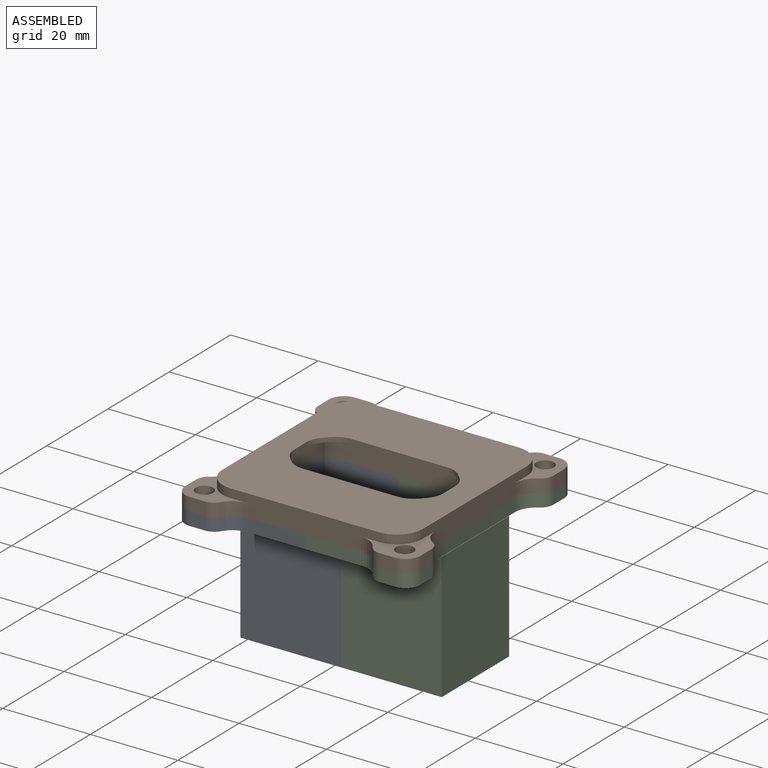
[diagram: assembled view]
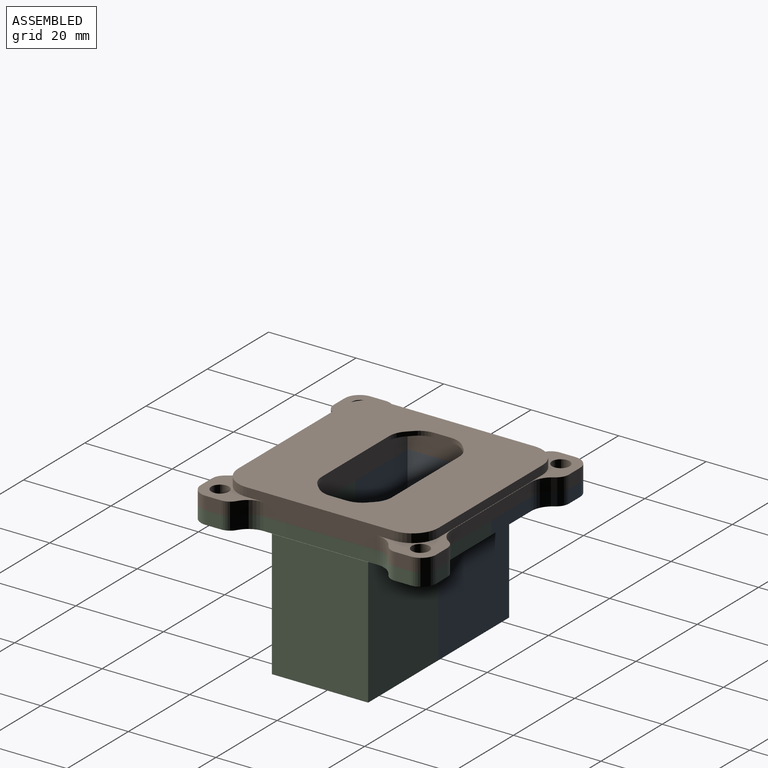
[diagram: assembled view, second angle]
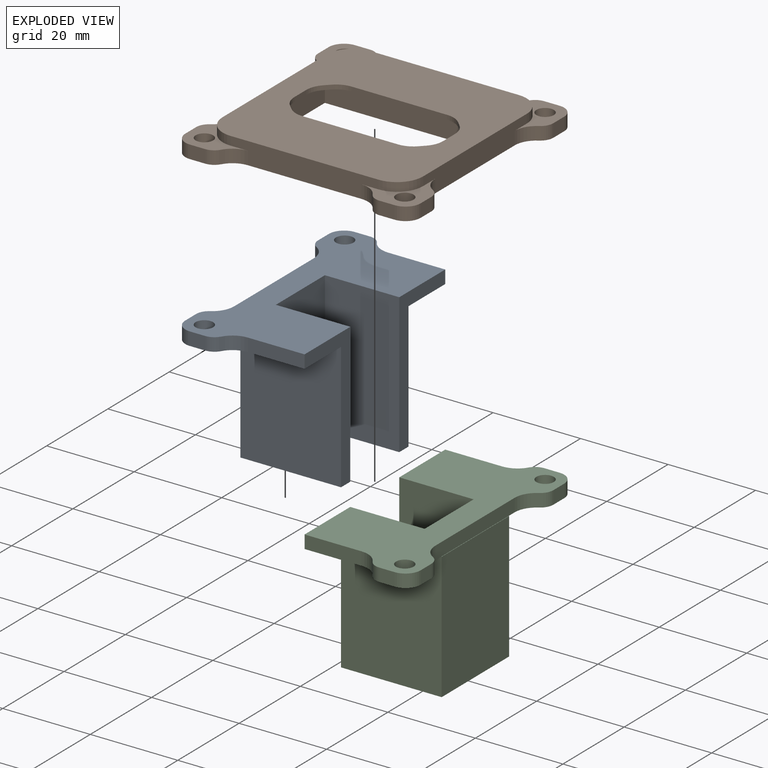
[diagram: exploded view]
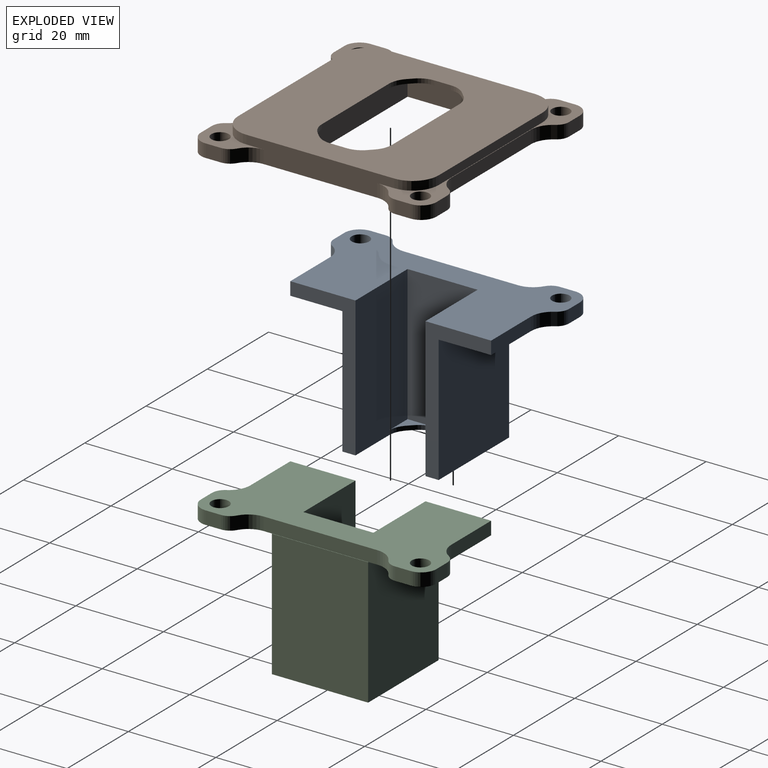
[diagram: exploded view, second angle]
ASSEMBLY  parts=3 mates=2
PART A: 38 faces, bbox 26.9x53.8x32 mm
  f0: plane 32x14.9mm, normal (1,0,0), area 131.7mm2, adj f27,f29,f33,f34,f35,f36
  f1: cylinder r=3mm len=3mm, axis (0,0,1), area 9.3mm2, adj f2,f15,f31,f36
  f2: plane 3.5x3mm, normal (0,1,0), area 10.5mm2, adj f1,f3,f31,f36
  f3: cylinder r=3.5mm len=3.5mm, axis (0,0,1), area 16.5mm2, adj f2,f4,f31,f36
  f4: plane 3.5x3mm, normal (-1,0,0), area 10.5mm2, adj f3,f5,f31,f36
  f5: cylinder r=3mm len=3mm, axis (0,0,1), area 9.3mm2, adj f4,f6,f31,f36
  f6: cylinder r=5mm len=4.29mm, axis (0,0,1), area 15.5mm2, adj f5,f17,f31,f36
  f7: cylinder r=2mm len=4mm, axis (0,0,1), area 37.7mm2, adj f31,f36
  f8: cylinder r=5mm len=4.29mm, axis (0,0,1), area 15.5mm2, adj f9,f17,f34,f36
  f9: cylinder r=3mm len=3mm, axis (0,0,1), area 9.3mm2, adj f8,f10,f34,f36
  f10: plane 3.5x3mm, normal (-1,0,0), area 10.5mm2, adj f9,f11,f34,f36
  f11: cylinder r=3.5mm len=3.5mm, axis (0,0,1), area 16.5mm2, adj f10,f12,f34,f36
  f12: plane 3.5x3mm, normal (0,-1,0), area 10.5mm2, adj f11,f13,f34,f36
  f13: cylinder r=3mm len=3mm, axis (0,0,1), area 9.4mm2, adj f12,f16,f34,f36
  f14: cylinder r=2mm len=4mm, axis (0,0,1), area 37.7mm2, adj f34,f36
  f15: cylinder r=5mm len=4.29mm, axis (0,0,1), area 15.5mm2, adj f1,f30,f31,f36
  f16: cylinder r=5mm len=4.33mm, axis (0,0,1), area 15.7mm2, adj f13,f33,f34,f36
  f17: plane 32x26.06mm, normal (-1,0,0), area 716.2mm2, adj f6,f8,f29,f31,f32,f34,f35,f36
  f18: plane 1.07x1.07mm, normal (0.71,0.71,0), area 1.5mm2, adj f19,f22,f23,f29
  f19: cylinder r=5mm len=3.54mm, axis (0,0,-1), area 3.9mm2, adj f18,f22,f26,f29
  f20: cylinder r=5mm len=3.54mm, axis (0,0,-1), area 3.9mm2, adj f21,f25,f26,f29
  f21: plane 1.07x1.07mm, normal (0.71,-0.71,0), area 1.5mm2, adj f20,f24,f25,f29
  f22: plane 6.07x6.07mm, normal (0,0,1), area 9.1mm2, adj f18,f19,f23,f26,f27
  f23: cylinder r=5mm len=3.54mm, axis (0,0,1), area 3.9mm2, adj f18,f22,f27,f29
  f24: cylinder r=5mm len=3.54mm, axis (0,0,-1), area 3.9mm2, adj f21,f25,f28,f29
  f25: plane 6.07x6.07mm, normal (0,0,1), area 9.1mm2, adj f20,f21,f24,f26,f28
  f26: plane 32x16mm, normal (1,0,0), area 499.9mm2, adj f19,f20,f22,f25,f27,f28,f29,f36
  f27: plane 32x17mm, normal (0,1,0), area 537.9mm2, adj f0,f22,f23,f26,f29,f36
  f28: plane 32x17mm, normal (0,-1,0), area 537.9mm2, adj f24,f25,f26,f29,f36,f37
  f29: plane 23x22mm, normal (0,0,-1), area 252.2mm2, adj f0,f17,f18,f19,f20,f21,f23,f24
  f30: plane 13.03x3mm, normal (0,1,0), area 39.1mm2, adj f15,f31,f36,f37
  f31: plane 26.9x15.9mm, normal (0,0,-1), area 324.2mm2, adj f1,f2,f3,f4,f5,f6,f7,f15
  f32: plane 29x23mm, normal (0,1,0), area 667mm2, adj f17,f29,f31,f37
  f33: plane 12.97x3mm, normal (0,-1,0), area 38.9mm2, adj f0,f16,f34,f36
  f34: plane 26.9x15.9mm, normal (0,0,-1), area 322.6mm2, adj f0,f8,f9,f10,f11,f12,f13,f14
  f35: plane 29x23mm, normal (0,-1,0), area 667mm2, adj f0,f17,f29,f34
  f36: plane 53.8x26.9mm, normal (0,0,1), area 880.8mm2, adj f0,f1,f2,f3,f4,f5,f6,f7
  f37: plane 32x15mm, normal (1,0,0), area 132mm2, adj f28,f29,f30,f31,f32,f36
PART B: 66 faces, bbox 53.8x53.8x5 mm
  f0: plane 16x5mm, normal (1,0,0), area 67.9mm2, adj f1,f2,f40,f50,f52,f61,f64,f65
  f1: plane 34x5mm, normal (0,-1,0), area 157.9mm2, adj f0,f2,f39,f50,f54,f59,f63,f65
  f2: plane 45.8x45.8mm, normal (0,0,1), area 1559mm2, adj f0,f1,f3,f4,f5,f6,f7,f8
  f3: plane 33.8x5mm, normal (1,0,0), area 145.4mm2, adj f2,f7,f10,f11,f12,f43,f46,f65
  f4: plane 33.8x2mm, normal (0,1,0), area 67.6mm2, adj f2,f7,f8,f12
  f5: plane 33.8x2mm, normal (-1,0,0), area 67.6mm2, adj f2,f8,f9,f12
  f6: plane 33.8x5mm, normal (0,-1,0), area 145.4mm2, adj f2,f9,f10,f11,f12,f44,f48,f65
  f7: cylinder r=6mm len=6mm, axis (0,0,1), area 18.8mm2, adj f2,f3,f4,f12
  f8: cylinder r=6mm len=6mm, axis (0,0,-1), area 18.8mm2, adj f2,f4,f5,f12
  f9: cylinder r=6mm len=6mm, axis (0,0,1), area 18.8mm2, adj f2,f5,f6,f12
  f10: cylinder r=6mm len=6mm, axis (0,0,-1), area 18.8mm2, adj f2,f3,f6,f11
  f11: plane 13.93x13.93mm, normal (0,0,1), area 57.3mm2, adj f3,f6,f10,f25,f26,f27,f28,f29
  f12: plane 53.8x53.8mm, normal (0,0,1), area 178.4mm2, adj f3,f4,f5,f6,f7,f8,f9,f13
  f13: plane 26.06x3mm, normal (-1,0,0), area 78.2mm2, adj f12,f41,f47,f65
  f14: cylinder r=3mm len=3mm, axis (0,0,1), area 9.3mm2, adj f12,f15,f41,f65
  f15: plane 3.5x3mm, normal (-1,0,0), area 10.5mm2, adj f12,f14,f16,f65
  f16: cylinder r=3.5mm len=3.5mm, axis (0,0,1), area 16.5mm2, adj f12,f15,f17,f65
  f17: plane 3.5x3mm, normal (0,1,0), area 10.5mm2, adj f12,f16,f18,f65
  f18: cylinder r=3mm len=3mm, axis (0,0,1), area 9.3mm2, adj f12,f17,f42,f65
  f19: plane 26.06x3mm, normal (0,1,0), area 78.2mm2, adj f12,f42,f45,f65
  f20: cylinder r=3mm len=3mm, axis (0,0,1), area 9.3mm2, adj f12,f21,f45,f65
  f21: plane 3.5x3mm, normal (0,1,0), area 10.5mm2, adj f12,f20,f22,f65
  f22: cylinder r=3.5mm len=3.5mm, axis (0,0,1), area 16.5mm2, adj f12,f21,f23,f65
  f23: plane 3.5x3mm, normal (1,0,0), area 10.5mm2, adj f12,f22,f24,f65
  f24: cylinder r=3mm len=3mm, axis (0,0,1), area 9.4mm2, adj f12,f23,f46,f65
  f25: cylinder r=3mm len=3mm, axis (0,0,1), area 9.4mm2, adj f11,f26,f43,f65
  f26: plane 3.5x3mm, normal (1,0,0), area 10.5mm2, adj f11,f25,f27,f65
  f27: cylinder r=3.5mm len=3.5mm, axis (0,0,1), area 16.5mm2, adj f11,f26,f28,f65
  f28: plane 3.5x3mm, normal (0,-1,0), area 10.5mm2, adj f11,f27,f29,f65
  f29: cylinder r=3mm len=3mm, axis (0,0,1), area 9.4mm2, adj f11,f28,f44,f65
  f30: cylinder r=3mm len=3mm, axis (0,0,1), area 9.4mm2, adj f12,f31,f48,f65
  f31: plane 3.5x3mm, normal (0,-1,0), area 10.5mm2, adj f12,f30,f32,f65
  f32: cylinder r=3.5mm len=3.5mm, axis (0,0,1), area 16.5mm2, adj f12,f31,f33,f65
  f33: plane 3.5x3mm, normal (-1,0,0), area 10.5mm2, adj f12,f32,f34,f65
  f34: cylinder r=3mm len=3mm, axis (0,0,1), area 9.3mm2, adj f12,f33,f47,f65
  f35: cylinder r=2mm len=4mm, axis (0,0,1), area 37.7mm2, adj f12,f65
  f36: cylinder r=2mm len=4mm, axis (0,0,1), area 37.7mm2, adj f11,f65
  f37: cylinder r=2mm len=4mm, axis (0,0,1), area 37.7mm2, adj f12,f65
  f38: cylinder r=2mm len=4mm, axis (0,0,1), area 37.7mm2, adj f12,f65
  f39: plane 16x5mm, normal (-1,0,0), area 67.9mm2, adj f1,f2,f40,f54,f56,f58,f60,f65
  f40: plane 34x5mm, normal (0,1,0), area 157.9mm2, adj f0,f2,f39,f52,f56,f57,f62,f65
  f41: cylinder r=5mm len=4.29mm, axis (0,0,1), area 15.5mm2, adj f12,f13,f14,f65
  f42: cylinder r=5mm len=4.29mm, axis (0,0,1), area 15.5mm2, adj f12,f18,f19,f65
  f43: cylinder r=5mm len=4.33mm, axis (0,0,1), area 15.7mm2, adj f3,f11,f25,f65
  f44: cylinder r=5mm len=4.33mm, axis (0,0,1), area 15.7mm2, adj f6,f11,f29,f65
  f45: cylinder r=5mm len=4.29mm, axis (0,0,1), area 15.5mm2, adj f12,f19,f20,f65
  f46: cylinder r=5mm len=4.33mm, axis (0,0,1), area 15.7mm2, adj f3,f12,f24,f65
  f47: cylinder r=5mm len=4.29mm, axis (0,0,1), area 15.5mm2, adj f12,f13,f34,f65
  f48: cylinder r=5mm len=4.33mm, axis (0,0,1), area 15.7mm2, adj f6,f12,f30,f65
  f49: plane 1.07x1.07mm, normal (0.71,-0.71,0), area 1.5mm2, adj f2,f50,f63,f64
  f50: plane 6.07x6.07mm, normal (0,0,-1), area 9.1mm2, adj f0,f1,f49,f63,f64
  f51: plane 1.07x1.07mm, normal (0.71,0.71,0), area 1.5mm2, adj f2,f52,f61,f62
  f52: plane 6.07x6.07mm, normal (0,0,-1), area 9.1mm2, adj f0,f40,f51,f61,f62
  f53: plane 1.07x1.07mm, normal (-0.71,-0.71,0), area 1.5mm2, adj f2,f54,f59,f60
  f54: plane 6.07x6.07mm, normal (0,0,-1), area 9.1mm2, adj f1,f39,f53,f59,f60
  f55: plane 1.07x1.07mm, normal (-0.71,0.71,0), area 1.5mm2, adj f2,f56,f57,f58
  f56: plane 6.07x6.07mm, normal (0,0,-1), area 9.1mm2, adj f39,f40,f55,f57,f58
  f57: cylinder r=5mm len=3.54mm, axis (0,0,-1), area 3.9mm2, adj f2,f40,f55,f56
  f58: cylinder r=5mm len=3.54mm, axis (0,0,-1), area 3.9mm2, adj f2,f39,f55,f56
  f59: cylinder r=5mm len=3.54mm, axis (0,0,-1), area 3.9mm2, adj f1,f2,f53,f54
  f60: cylinder r=5mm len=3.54mm, axis (0,0,1), area 3.9mm2, adj f2,f39,f53,f54
  f61: cylinder r=5mm len=3.54mm, axis (0,0,-1), area 3.9mm2, adj f0,f2,f51,f52
  f62: cylinder r=5mm len=3.54mm, axis (0,0,1), area 3.9mm2, adj f2,f40,f51,f52
  f63: cylinder r=5mm len=3.54mm, axis (0,0,1), area 3.9mm2, adj f1,f2,f49,f50
  f64: cylinder r=5mm len=3.54mm, axis (0,0,1), area 3.9mm2, adj f0,f2,f49,f50
  f65: plane 53.8x53.8mm, normal (0,0,-1), area 1758.5mm2, adj f0,f1,f3,f6,f13,f14,f15,f16
PART C: 40 faces, bbox 26.9x53.8x32 mm
  f0: plane 53.8x26.9mm, normal (0,0,1), area 877.6mm2, adj f11,f13,f15,f16,f17,f18,f19,f20
  f1: plane 29x22mm, normal (1,0,0), area 638mm2, adj f5,f6,f7,f32
  f2: plane 1.07x1.07mm, normal (-0.71,-0.71,0), area 1.5mm2, adj f4,f9,f10,f32
  f3: plane 1.07x1.07mm, normal (-0.71,0.71,0), area 1.5mm2, adj f8,f32,f33,f34
  f4: cylinder r=5mm len=3.54mm, axis (0,0,-1), area 3.9mm2, adj f2,f10,f32,f37
  f5: plane 22x0.1mm, normal (0,0,1), area 2.2mm2, adj f1,f6,f7,f31
  f6: plane 29x23mm, normal (0,-1,0), area 667mm2, adj f1,f5,f14,f32,f39
  f7: plane 29x23mm, normal (0,1,0), area 667mm2, adj f1,f5,f12,f32,f38
  f8: cylinder r=5mm len=3.54mm, axis (0,0,1), area 3.9mm2, adj f3,f32,f34,f36
  f9: cylinder r=5mm len=3.54mm, axis (0,0,1), area 3.9mm2, adj f2,f10,f32,f36
  f10: plane 6.07x6.07mm, normal (0,0,1), area 9.1mm2, adj f2,f4,f9,f36,f37
  f11: cylinder r=2mm len=4mm, axis (0,0,1), area 37.7mm2, adj f0,f12
  f12: plane 26.9x15.9mm, normal (0,0,-1), area 323.7mm2, adj f7,f11,f15,f16,f17,f18,f19,f20
  f13: cylinder r=2mm len=4mm, axis (0,0,1), area 37.7mm2, adj f0,f14
  f14: plane 26.9x15.9mm, normal (0,0,-1), area 322.1mm2, adj f6,f13,f23,f24,f25,f26,f27,f28
  f15: cylinder r=5mm len=4.29mm, axis (0,0,1), area 15.5mm2, adj f0,f12,f21,f22
  f16: cylinder r=5mm len=4.33mm, axis (0,0,1), area 15.7mm2, adj f0,f12,f17,f31
  f17: cylinder r=3mm len=3mm, axis (0,0,1), area 9.4mm2, adj f0,f12,f16,f18
  f18: plane 3.5x3mm, normal (1,0,0), area 10.5mm2, adj f0,f12,f17,f19
  f19: cylinder r=3.5mm len=3.5mm, axis (0,0,1), area 16.5mm2, adj f0,f12,f18,f20
  f20: plane 3.5x3mm, normal (0,1,0), area 10.5mm2, adj f0,f12,f19,f21
  f21: cylinder r=3mm len=3mm, axis (0,0,1), area 9.3mm2, adj f0,f12,f15,f20
  f22: plane 13.03x3mm, normal (0,1,0), area 39.1mm2, adj f0,f12,f15,f38
  f23: cylinder r=5mm len=4.33mm, axis (0,0,1), area 15.7mm2, adj f0,f14,f29,f31
  f24: cylinder r=5mm len=4.33mm, axis (0,0,1), area 15.7mm2, adj f0,f14,f25,f30
  f25: cylinder r=3mm len=3mm, axis (0,0,1), area 9.4mm2, adj f0,f14,f24,f26
  f26: plane 3.5x3mm, normal (0,-1,0), area 10.5mm2, adj f0,f14,f25,f27
  f27: cylinder r=3.5mm len=3.5mm, axis (0,0,1), area 16.5mm2, adj f0,f14,f26,f28
  f28: plane 3.5x3mm, normal (1,0,0), area 10.5mm2, adj f0,f14,f27,f29
  f29: cylinder r=3mm len=3mm, axis (0,0,1), area 9.4mm2, adj f0,f14,f23,f28
  f30: plane 12.97x3mm, normal (0,-1,0), area 38.9mm2, adj f0,f14,f24,f39
  f31: plane 25.94x3mm, normal (1,0,0), area 77.8mm2, adj f0,f5,f12,f14,f16,f23
  f32: plane 23x22mm, normal (0,0,-1), area 252.2mm2, adj f1,f2,f3,f4,f6,f7,f8,f9
  f33: cylinder r=5mm len=3.54mm, axis (0,0,1), area 3.9mm2, adj f3,f32,f34,f35
  f34: plane 6.07x6.07mm, normal (0,0,1), area 9.1mm2, adj f3,f8,f33,f35,f36
  f35: plane 32x17mm, normal (0,1,0), area 537.9mm2, adj f0,f32,f33,f34,f36,f39
  f36: plane 32x16mm, normal (-1,0,0), area 499.9mm2, adj f0,f8,f9,f10,f32,f34,f35,f37
  f37: plane 32x17mm, normal (0,-1,0), area 537.9mm2, adj f0,f4,f10,f32,f36,f38
  f38: plane 32x15mm, normal (-1,0,0), area 132mm2, adj f0,f7,f12,f22,f32,f37
  f39: plane 32x14.9mm, normal (-1,0,0), area 131.7mm2, adj f0,f6,f14,f30,f32,f35
PLACE A t=(23,0,35)mm
PLACE B t=(23,0,35)mm
PLACE C t=(23,0,35)mm
MATE slider B.f38 <-> A.f14  axis (0,0,-1) through (0.1,-22.9,32)mm
MATE fastened A.f37 <-> C.f38  axis (1,0,0) through (23,8,16)mm
